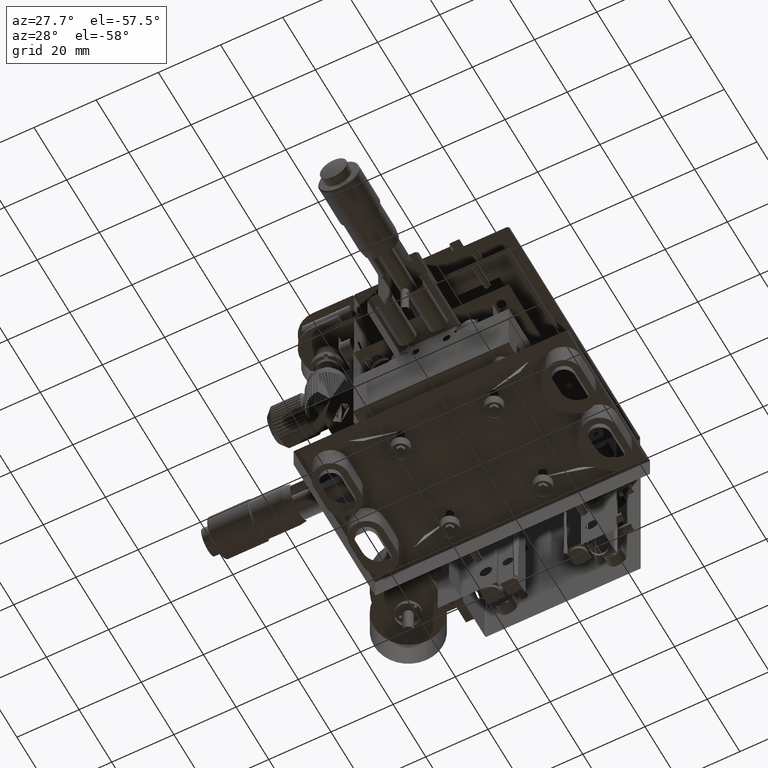
[diagram: clean part render]
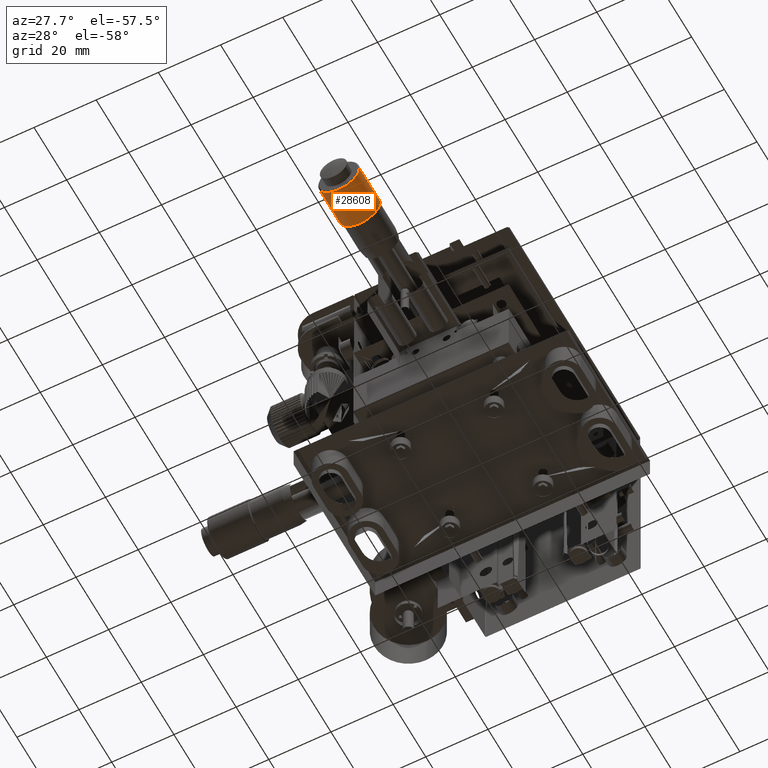
[diagram: same view with one face highlighted and labeled with its STEP entity id]
A machine part, auxiliary view. The second image highlights one B-rep face of the part: STEP entity #28608.
In plain terms, the highlighted face is a freeform B-spline surface patch.
Its self-contained STEP definition (entity closure, byte-faithful):
#520 = CARTESIAN_POINT ( 'NONE',  ( 2.143628209608429813, -66.19115038357220726, 38.00000000000000000 ) ) ;
#2593 = CARTESIAN_POINT ( 'NONE',  ( -1.156371790420047230, -66.19115038362913594, 31.40000000005694147 ) ) ;
#4083 = CARTESIAN_POINT ( 'NONE',  ( -11.05637179033459816, -66.19115038362910752, 33.60000000003794440 ) ) ;
#4609 =( BOUNDED_CURVE ( )  B_SPLINE_CURVE ( 3, ( #50749, #35117, #16593, #16269 ),
 .UNSPECIFIED., .F., .F. ) 
 B_SPLINE_CURVE_WITH_KNOTS ( ( 4, 4 ),
 ( 0.000000000000000000, 1.000000000000000000 ),
 .UNSPECIFIED. ) 
 CURVE ( )  GEOMETRIC_REPRESENTATION_ITEM ( )  RATIONAL_B_SPLINE_CURVE ( ( 1.000000000000000000, 0.6666666666666665186, 0.4999999999999997780, 0.4999999999999997780 ) ) 
 REPRESENTATION_ITEM ( '' )  );
#4663 = VERTEX_POINT ( 'NONE', #11997 ) ;
#4791 = CARTESIAN_POINT ( 'NONE',  ( -11.05637179039160678, -79.09115038357222716, 24.80000000000000782 ) ) ;
#6498 = CARTESIAN_POINT ( 'NONE',  ( 2.143628209619364622, -79.09115038358309846, 38.00000000000000000 ) ) ;
#6562 = ORIENTED_EDGE ( 'NONE', *, *, #52790, .T. ) ;
#8119 = CARTESIAN_POINT ( 'NONE',  ( 2.143628209589444999, -66.19115038359120717, 38.00000000000000000 ) ) ;
#8425 = CARTESIAN_POINT ( 'NONE',  ( -4.456371790391569832, -66.19115038359120717, 31.40000000005694503 ) ) ;
#9971 = EDGE_CURVE ( 'NONE', #4663, #31480, #35256, .T. ) ;
#10240 = CARTESIAN_POINT ( 'NONE',  ( 2.143628209619364622, -79.09115038358309846, 38.00000000000000000 ) ) ;
#11997 = CARTESIAN_POINT ( 'NONE',  ( 2.143628209589444999, -66.19115038359120717, 38.00000000000000000 ) ) ;
#12528 = CARTESIAN_POINT ( 'NONE',  ( -11.05637179040252072, -79.09115038358309846, 38.00000000000000000 ) ) ;
#14835 = CARTESIAN_POINT ( 'NONE',  ( -11.05637179039159967, -66.19115038357220726, 38.00000000000000000 ) ) ;
#15051 = CARTESIAN_POINT ( 'NONE',  ( -4.456371790391569832, -66.19115038359120717, 31.40000000005694503 ) ) ;
#15477 = EDGE_CURVE ( 'NONE', #4663, #18342, #25797, .T. ) ;
#16269 = CARTESIAN_POINT ( 'NONE',  ( -4.456371790391569832, -79.09115038358309846, 31.39999999996720348 ) ) ;
#16593 = CARTESIAN_POINT ( 'NONE',  ( -0.05637179039157463878, -79.09115038357221295, 31.40000000000000568 ) ) ;
#17616 = ORIENTED_EDGE ( 'NONE', *, *, #15477, .T. ) ;
#18342 = VERTEX_POINT ( 'NONE', #10240 ) ;
#20751 = EDGE_CURVE ( 'NONE', #31480, #49089, #51474, .T. ) ;
#20990 = CARTESIAN_POINT ( 'NONE',  ( -11.05637179039160678, -66.19115038357220726, 24.80000000000000782 ) ) ;
#21626 = VERTEX_POINT ( 'NONE', #42874 ) ;
#25797 = B_SPLINE_CURVE_WITH_KNOTS ( 'NONE', 1,
 ( #51020, #6498 ),
 .UNSPECIFIED., .F., .F.,
 ( 2, 2 ),
 ( 0.000000000000000000, 1.000000000000000000 ),
 .UNSPECIFIED. ) ;
#25870 = CARTESIAN_POINT ( 'NONE',  ( -11.05637179039159967, -79.09115038357219873, 38.00000000000000000 ) ) ;
#27628 =( BOUNDED_SURFACE ( )  B_SPLINE_SURFACE ( 3, 1, ( 
 ( #14835, #25870 ),
 ( #20990, #4791 ),
 ( #45042, #34645 ),
 ( #520, #51247 ) ),
 .UNSPECIFIED., .F., .F., .F. ) 
 B_SPLINE_SURFACE_WITH_KNOTS ( ( 4, 4 ),
 ( 2, 2 ),
 ( 0.000000000000000000, 1.000000000000000000 ),
 ( 0.000000000000000000, 1.000000000000000000 ),
 .UNSPECIFIED. ) 
 GEOMETRIC_REPRESENTATION_ITEM ( )  RATIONAL_B_SPLINE_SURFACE ( (
 ( 1.000000000000000000, 1.000000000000000000),
 ( 0.3333333333333329818, 0.3333333333333329818),
 ( 0.3333333333333329818, 0.3333333333333329818),
 ( 1.000000000000000000, 1.000000000000000000) ) ) 
 REPRESENTATION_ITEM ( '' )  SURFACE ( )  );
#27905 = CARTESIAN_POINT ( 'NONE',  ( -8.856371790391596832, -79.09115038357221295, 31.40000000000000568 ) ) ;
#28229 = CARTESIAN_POINT ( 'NONE',  ( -4.456371790391569832, -79.09115038358309846, 31.39999999996720348 ) ) ;
#28608 = ADVANCED_FACE ( 'NONE', ( #54810 ), #27628, .T. ) ;
#30559 = EDGE_LOOP ( 'NONE', ( #6562, #32907, #37580, #47620, #39382, #17616 ) ) ;
#31426 = EDGE_CURVE ( 'NONE', #34635, #49089, #41216, .T. ) ;
#31480 = VERTEX_POINT ( 'NONE', #15051 ) ;
#32466 = CARTESIAN_POINT ( 'NONE',  ( -11.05637179040252072, -79.09115038358309846, 38.00000000000000000 ) ) ;
#32907 = ORIENTED_EDGE ( 'NONE', *, *, #50065, .T. ) ;
#33087 = CARTESIAN_POINT ( 'NONE',  ( -11.05637179039160145, -79.09115038357221295, 34.70000000000000284 ) ) ;
#33096 =( BOUNDED_CURVE ( )  B_SPLINE_CURVE ( 3, ( #28229, #27905, #33087, #32466 ),
 .UNSPECIFIED., .F., .F. ) 
 B_SPLINE_CURVE_WITH_KNOTS ( ( 4, 4 ),
 ( 0.000000000000000000, 1.000000000000000000 ),
 .UNSPECIFIED. ) 
 CURVE ( )  GEOMETRIC_REPRESENTATION_ITEM ( )  RATIONAL_B_SPLINE_CURVE ( ( 0.4999999999999997780, 0.4999999999999997780, 0.6666666666666665186, 1.000000000000000000 ) ) 
 REPRESENTATION_ITEM ( '' )  );
#34251 = CARTESIAN_POINT ( 'NONE',  ( -11.05637179037259976, -66.19115038359120717, 38.00000000000000000 ) ) ;
#34635 = VERTEX_POINT ( 'NONE', #12528 ) ;
#34645 = CARTESIAN_POINT ( 'NONE',  ( 2.143628209608431145, -79.09115038357222716, 24.80000000000000782 ) ) ;
#35117 = CARTESIAN_POINT ( 'NONE',  ( 2.143628209608429813, -79.09115038357221295, 34.70000000000000284 ) ) ;
#35256 =( BOUNDED_CURVE ( )  B_SPLINE_CURVE ( 3, ( #8119, #42192, #2593, #8425 ),
 .UNSPECIFIED., .F., .T. ) 
 B_SPLINE_CURVE_WITH_KNOTS ( ( 4, 4 ),
 ( 0.000000000000000000, 1.000000000000000000 ),
 .UNSPECIFIED. ) 
 CURVE ( )  GEOMETRIC_REPRESENTATION_ITEM ( )  RATIONAL_B_SPLINE_CURVE ( ( 0.4999999999999997224, 0.4999999999999996669, 0.6666666666666664076, 1.000000000000000000 ) ) 
 REPRESENTATION_ITEM ( '' )  );
#37580 = ORIENTED_EDGE ( 'NONE', *, *, #31426, .T. ) ;
#37654 = CARTESIAN_POINT ( 'NONE',  ( -11.05637179037259976, -66.19115038359120717, 38.00000000000000000 ) ) ;
#39127 = CARTESIAN_POINT ( 'NONE',  ( -4.456371790391569832, -66.19115038359120717, 31.40000000005694503 ) ) ;
#39382 = ORIENTED_EDGE ( 'NONE', *, *, #9971, .F. ) ;
#41216 = B_SPLINE_CURVE_WITH_KNOTS ( 'NONE', 1,
 ( #42993, #58639 ),
 .UNSPECIFIED., .F., .F.,
 ( 2, 2 ),
 ( 0.000000000000000000, 1.000000000000000000 ),
 .UNSPECIFIED. ) ;
#42192 = CARTESIAN_POINT ( 'NONE',  ( 2.143628209551477148, -66.19115038362912173, 33.60000000003795861 ) ) ;
#42874 = CARTESIAN_POINT ( 'NONE',  ( -4.456371790391569832, -79.09115038358309846, 31.39999999996720348 ) ) ;
#42993 = CARTESIAN_POINT ( 'NONE',  ( -11.05637179040252072, -79.09115038358309846, 38.00000000000000000 ) ) ;
#45042 = CARTESIAN_POINT ( 'NONE',  ( 2.143628209608431145, -66.19115038357220726, 24.80000000000000782 ) ) ;
#47620 = ORIENTED_EDGE ( 'NONE', *, *, #20751, .F. ) ;
#48916 = CARTESIAN_POINT ( 'NONE',  ( -7.756371790363082219, -66.19115038362912173, 31.40000000005693792 ) ) ;
#49089 = VERTEX_POINT ( 'NONE', #37654 ) ;
#50065 = EDGE_CURVE ( 'NONE', #21626, #34635, #33096, .T. ) ;
#50749 = CARTESIAN_POINT ( 'NONE',  ( 2.143628209619364622, -79.09115038358309846, 38.00000000000000000 ) ) ;
#51020 = CARTESIAN_POINT ( 'NONE',  ( 2.143628209589444999, -66.19115038359120717, 38.00000000000000000 ) ) ;
#51247 = CARTESIAN_POINT ( 'NONE',  ( 2.143628209608429813, -79.09115038357219873, 38.00000000000000000 ) ) ;
#51474 =( BOUNDED_CURVE ( )  B_SPLINE_CURVE ( 3, ( #39127, #48916, #4083, #34251 ),
 .UNSPECIFIED., .F., .F. ) 
 B_SPLINE_CURVE_WITH_KNOTS ( ( 4, 4 ),
 ( 0.000000000000000000, 1.000000000000000000 ),
 .UNSPECIFIED. ) 
 CURVE ( )  GEOMETRIC_REPRESENTATION_ITEM ( )  RATIONAL_B_SPLINE_CURVE ( ( 1.000000000000000000, 0.6666666666666667407, 0.5000000000000000000, 0.4999999999999997780 ) ) 
 REPRESENTATION_ITEM ( '' )  );
#52790 = EDGE_CURVE ( 'NONE', #18342, #21626, #4609, .T. ) ;
#54810 = FACE_OUTER_BOUND ( 'NONE', #30559, .T. ) ;
#58639 = CARTESIAN_POINT ( 'NONE',  ( -11.05637179037259976, -66.19115038359120717, 38.00000000000000000 ) ) ;